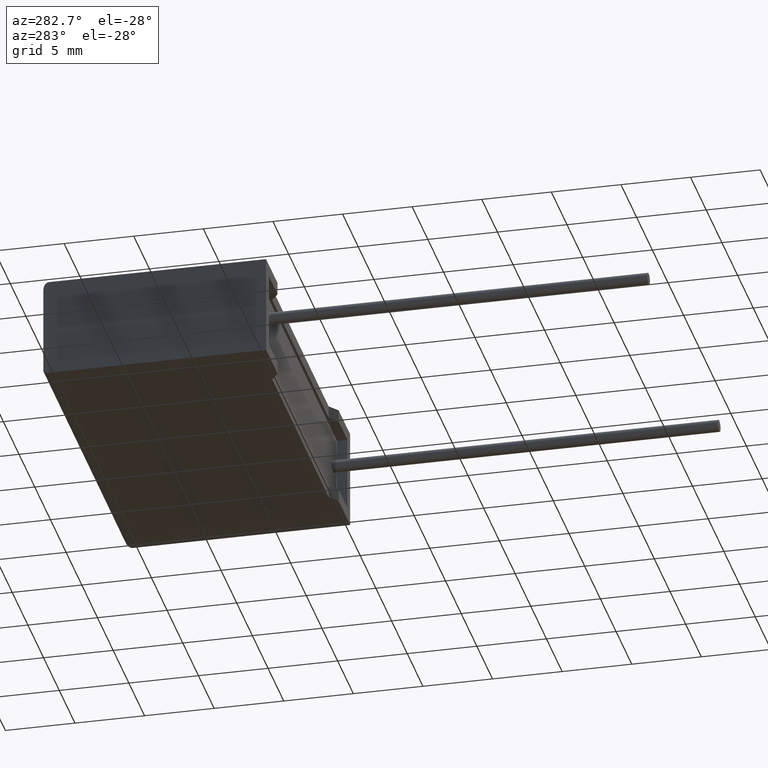
[diagram: clean part render]
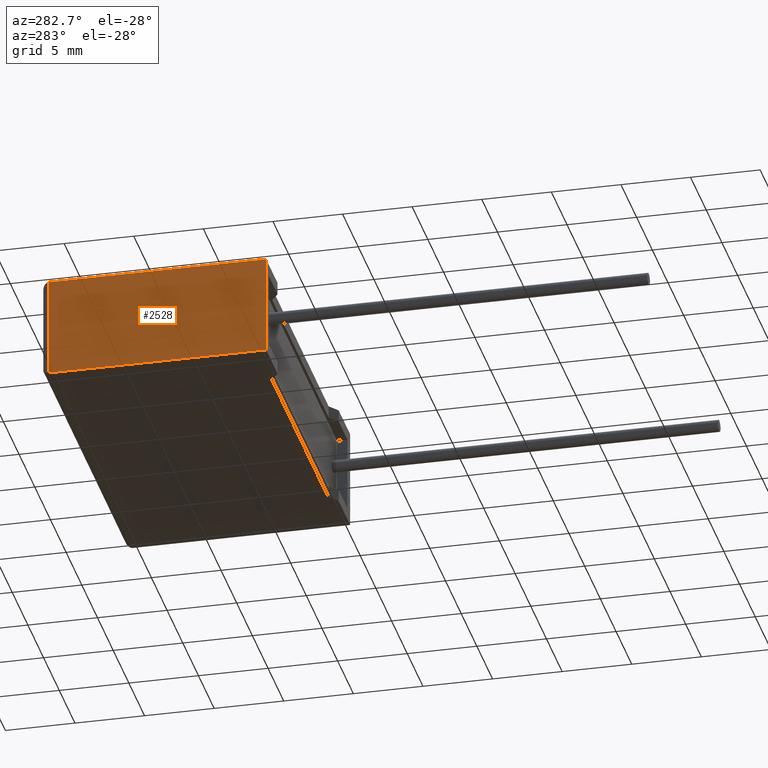
[diagram: same view with one face highlighted and labeled with its STEP entity id]
A machine part, auxiliary view. The second image highlights one B-rep face of the part: STEP entity #2528.
In plain terms, the highlighted planar face has unit normal (1, 0, 0).
Its self-contained STEP definition (entity closure, byte-faithful):
#106 = EDGE_CURVE ( 'NONE', #2581, #353, #2111, .T. ) ;
#353 = VERTEX_POINT ( 'NONE', #2747 ) ;
#492 = VECTOR ( 'NONE', #2690, 1000.000000000000000 ) ;
#598 = EDGE_CURVE ( 'NONE', #2274, #1978, #2206, .T. ) ;
#624 = CARTESIAN_POINT ( 'NONE',  ( 0.0000000000000000000, 15.60000000000000000, 7.200000000000000200 ) ) ;
#740 = VECTOR ( 'NONE', #2553, 1000.000000000000000 ) ;
#787 = CARTESIAN_POINT ( 'NONE',  ( 0.0000000000000000000, 0.0000000000000000000, 7.200000000000000200 ) ) ;
#791 = ORIENTED_EDGE ( 'NONE', *, *, #914, .T. ) ;
#812 = DIRECTION ( 'NONE',  ( 0.0000000000000000000, 0.0000000000000000000, -1.000000000000000000 ) ) ;
#909 = CARTESIAN_POINT ( 'NONE',  ( 0.0000000000000000000, 15.60000000000000000, 7.200000000000000200 ) ) ;
#914 = EDGE_CURVE ( 'NONE', #1978, #353, #1765, .T. ) ;
#945 = ORIENTED_EDGE ( 'NONE', *, *, #1528, .F. ) ;
#958 = CARTESIAN_POINT ( 'NONE',  ( 0.0000000000000000000, 0.0000000000000000000, 7.200000000000000200 ) ) ;
#1054 = DIRECTION ( 'NONE',  ( 1.000000000000000000, 0.0000000000000000000, 0.0000000000000000000 ) ) ;
#1352 = CARTESIAN_POINT ( 'NONE',  ( 0.0000000000000000000, 0.0000000000000000000, 7.200000000000000200 ) ) ;
#1434 = CARTESIAN_POINT ( 'NONE',  ( 0.0000000000000000000, 15.60000000000000000, 0.0000000000000000000 ) ) ;
#1508 = FACE_OUTER_BOUND ( 'NONE', #2642, .T. ) ;
#1528 = EDGE_CURVE ( 'NONE', #2274, #2581, #2003, .T. ) ;
#1617 = VECTOR ( 'NONE', #2657, 1000.000000000000000 ) ;
#1633 = AXIS2_PLACEMENT_3D ( 'NONE', #787, #1054, #812 ) ;
#1765 = LINE ( 'NONE', #2454, #492 ) ;
#1978 = VERTEX_POINT ( 'NONE', #1434 ) ;
#2003 = LINE ( 'NONE', #1352, #740 ) ;
#2111 = LINE ( 'NONE', #958, #1617 ) ;
#2131 = CARTESIAN_POINT ( 'NONE',  ( 0.0000000000000000000, 0.0000000000000000000, 7.200000000000000200 ) ) ;
#2189 = DIRECTION ( 'NONE',  ( 0.0000000000000000000, 0.0000000000000000000, -1.000000000000000000 ) ) ;
#2206 = LINE ( 'NONE', #909, #2976 ) ;
#2274 = VERTEX_POINT ( 'NONE', #624 ) ;
#2454 = CARTESIAN_POINT ( 'NONE',  ( 0.0000000000000000000, 0.0000000000000000000, 0.0000000000000000000 ) ) ;
#2528 = ADVANCED_FACE ( 'NONE', ( #1508 ), #2901, .F. ) ;
#2553 = DIRECTION ( 'NONE',  ( -0.0000000000000000000, -1.000000000000000000, -0.0000000000000000000 ) ) ;
#2581 = VERTEX_POINT ( 'NONE', #2131 ) ;
#2594 = ORIENTED_EDGE ( 'NONE', *, *, #106, .F. ) ;
#2642 = EDGE_LOOP ( 'NONE', ( #945, #2974, #791, #2594 ) ) ;
#2657 = DIRECTION ( 'NONE',  ( -0.0000000000000000000, -0.0000000000000000000, -1.000000000000000000 ) ) ;
#2690 = DIRECTION ( 'NONE',  ( -0.0000000000000000000, -1.000000000000000000, -0.0000000000000000000 ) ) ;
#2747 = CARTESIAN_POINT ( 'NONE',  ( 0.0000000000000000000, 0.0000000000000000000, 0.0000000000000000000 ) ) ;
#2901 = PLANE ( 'NONE',  #1633 ) ;
#2974 = ORIENTED_EDGE ( 'NONE', *, *, #598, .T. ) ;
#2976 = VECTOR ( 'NONE', #2189, 1000.000000000000000 ) ;